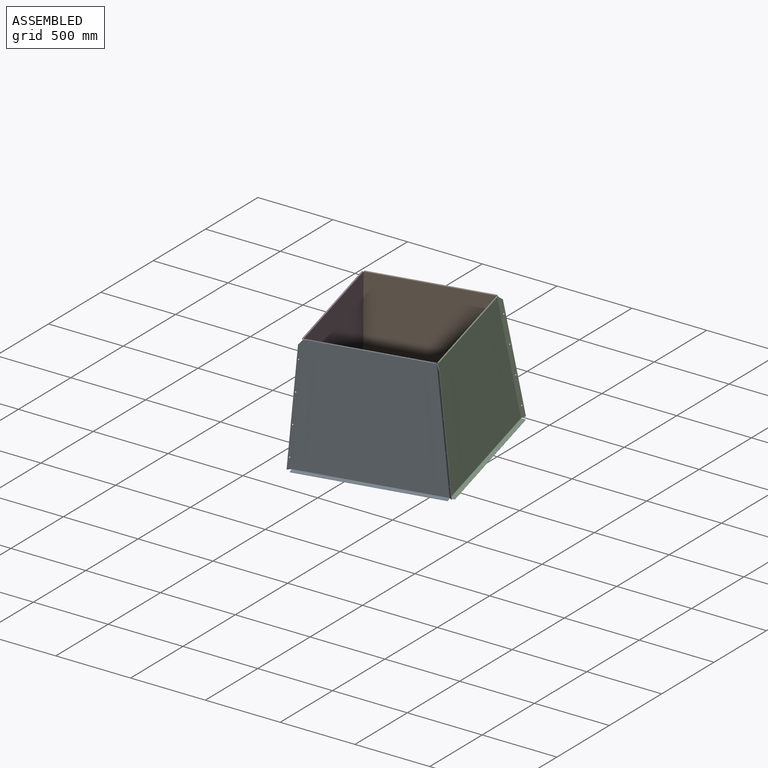
[diagram: assembled view]
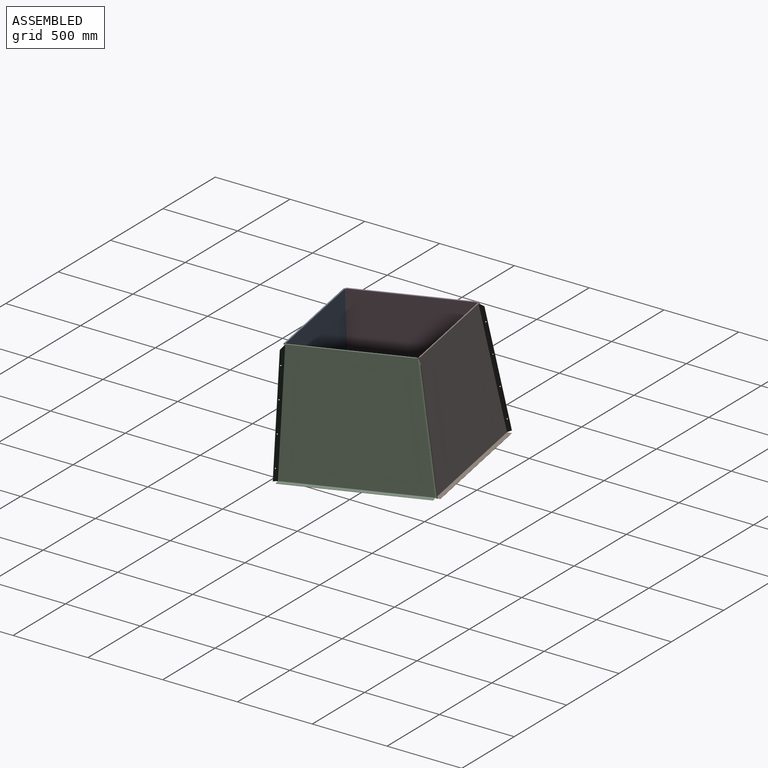
[diagram: assembled view, second angle]
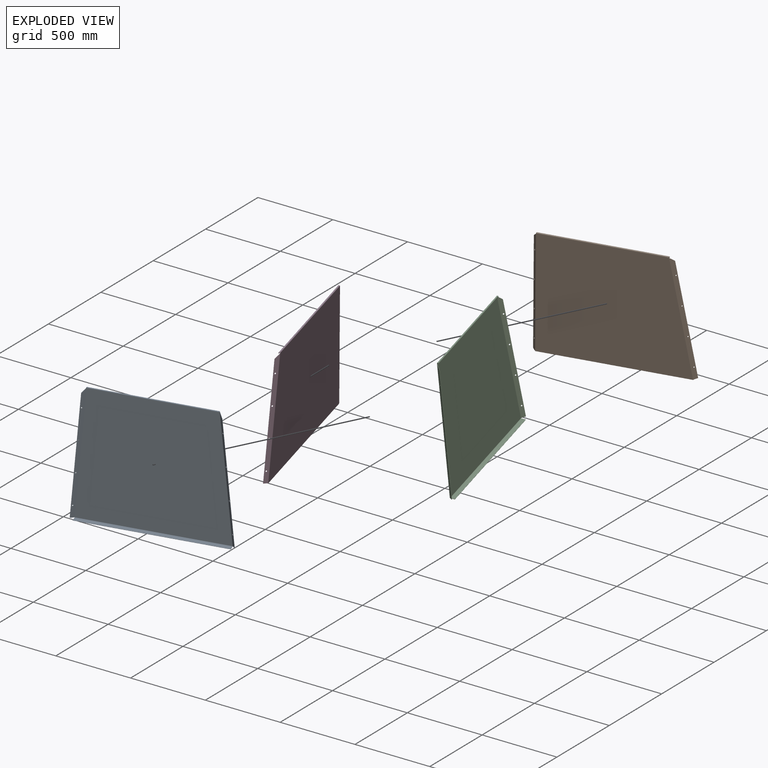
[diagram: exploded view]
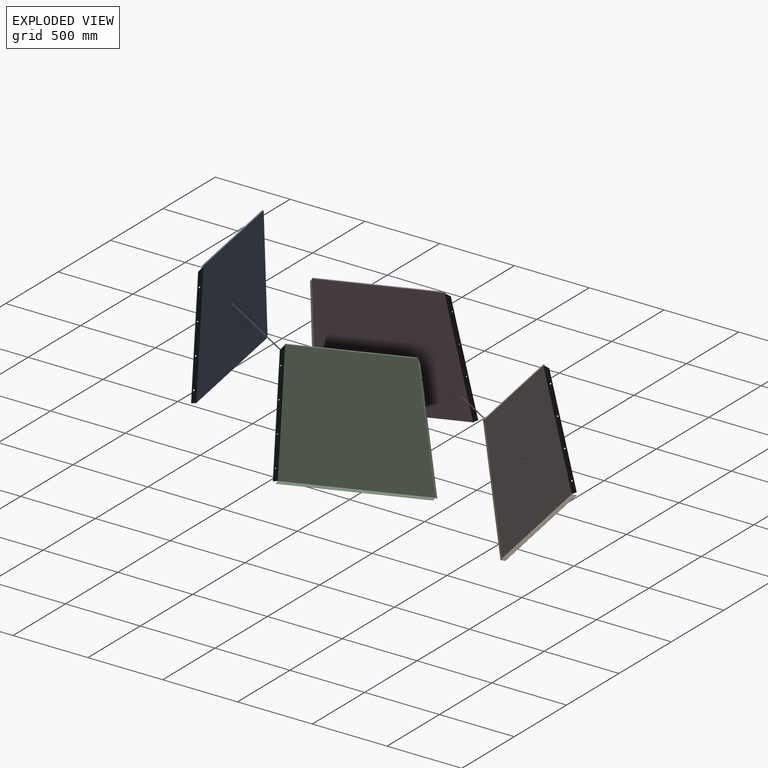
[diagram: exploded view, second angle]
ASSEMBLY  parts=4 mates=3
PART A: 64 faces, bbox 991.6x29.8x805.2 mm
  f0: plane 3.55x1.5mm, normal (1,0,0.09), area 5.4mm2, adj f3,f4,f5,f44
  f1: plane 3.55x1.5mm, normal (-1,0,0.09), area 5.4mm2, adj f2,f4,f5,f30
  f2: plane 1.5x0.09mm, normal (0,0,1), area 0.1mm2, adj f1,f4,f5,f61
  f3: plane 1.5x0.09mm, normal (0,0,1), area 0.1mm2, adj f0,f4,f5,f60
  f4: plane 947.51x795.4mm, normal (0,1,0), area 694342mm2, adj f0,f1,f2,f3,f17,f31,f45,f62
  f5: plane 947.51x795.4mm, normal (0,-1,0), area 694342mm2, adj f0,f1,f2,f3,f18,f32,f46,f63
  f6: plane 1.48x0.5mm, normal (0,0.98,0.17), area 0.7mm2, adj f12,f13,f14,f16
  f7: plane 1.48x0.5mm, normal (0,0.98,0.17), area 0.7mm2, adj f8,f13,f14,f15
  f8: plane 1.48x0.63mm, normal (0,0.98,0.17), area 0.9mm2, adj f7,f9,f13,f14
  f9: plane 27.74x6.32mm, normal (1,0,0), area 41.9mm2, adj f8,f10,f13,f14
  f10: plane 949.76x1.48mm, normal (0,-0.98,-0.17), area 1424.6mm2, adj f9,f11,f13,f14
  f11: plane 27.74x6.32mm, normal (-1,0,0), area 41.9mm2, adj f10,f12,f13,f14
  f12: plane 1.48x0.63mm, normal (0,0.98,0.17), area 0.9mm2, adj f6,f11,f13,f14
  f13: plane 949.76x27.48mm, normal (0,0.17,-0.98), area 26500.6mm2, adj f6,f7,f8,f9,f10,f11,f12,f17
  f14: plane 949.76x27.48mm, normal (0,-0.17,0.98), area 26500.6mm2, adj f6,f7,f8,f9,f10,f11,f12,f18
  f15: plane 2.46x2.33mm, normal (1,0,0), area 3.7mm2, adj f7,f17,f18,f43
  f16: plane 2.46x2.33mm, normal (-1,0,0), area 3.7mm2, adj f6,f17,f18,f29
  f17: cylinder r=2.5mm len=947.51mm, axis (1,0,0), area 3307.4mm2, adj f4,f13,f15,f16
  f18: cylinder r=1mm len=947.51mm, axis (1,0,0), area 1323mm2, adj f5,f14,f15,f16
  f19: plane 21.62x21.36mm, normal (-0.09,0,-1), area 43.4mm2, adj f20,f25,f26,f27
  f20: plane 763.15x72.6mm, normal (-0.7,-0.71,0.07), area 1149.6mm2, adj f19,f26,f27,f28
  f21: cylinder r=3.5mm len=7.08mm, axis (-0.71,0.7,0.07), area 33mm2, adj f26,f27
  f22: cylinder r=3.5mm len=7.08mm, axis (-0.71,0.7,0.07), area 33mm2, adj f26,f27
  f23: cylinder r=3.5mm len=7.08mm, axis (-0.71,0.7,0.07), area 33mm2, adj f26,f27
  f24: cylinder r=3.5mm len=7.08mm, axis (-0.71,0.7,0.07), area 33mm2, adj f26,f27
  f25: plane 1.06x1.06mm, normal (0.7,0.71,-0.07), area 0.1mm2, adj f19,f26,f27,f29
  f26: plane 791.89x94.54mm, normal (-0.71,0.7,0.07), area 22458.7mm2, adj f19,f20,f21,f22,f23,f24,f25,f28
  f27: plane 791.89x94.54mm, normal (0.71,-0.7,-0.07), area 22458.7mm2, adj f19,f20,f21,f22,f23,f24,f25,f28
  f28: plane 27.03x24.06mm, normal (-0.43,-0.5,0.75), area 61.4mm2, adj f20,f26,f27,f30
  f29: plane 1.8x1.77mm, normal (-0.09,0,-1), area 2.1mm2, adj f16,f25,f31,f32
  f30: plane 1.8x1.77mm, normal (0.09,0,1), area 2.1mm2, adj f1,f28,f31,f32
  f31: cylinder r=2.5mm len=792.01mm, axis (-0.09,0,-1), area 1570.5mm2, adj f4,f26,f29,f30
  f32: cylinder r=1mm len=791.91mm, axis (-0.09,0,-1), area 628.2mm2, adj f5,f27,f29,f30
  f33: plane 1.06x1.06mm, normal (-0.7,0.71,-0.07), area 0.1mm2, adj f35,f40,f41,f43
  f34: plane 763.15x72.6mm, normal (0.7,-0.71,0.07), area 1149.6mm2, adj f35,f40,f41,f42
  f35: plane 21.62x21.36mm, normal (0.09,0,-1), area 43.4mm2, adj f33,f34,f40,f41
  f36: cylinder r=4.6mm len=9.28mm, axis (0.71,0.7,0.07), area 43.4mm2, adj f40,f41
  f37: cylinder r=4.6mm len=9.28mm, axis (0.71,0.7,0.07), area 43.4mm2, adj f40,f41
  f38: cylinder r=4.6mm len=9.28mm, axis (0.71,0.7,0.07), area 43.4mm2, adj f40,f41
  f39: cylinder r=4.6mm len=9.28mm, axis (0.71,0.7,0.07), area 43.4mm2, adj f40,f41
  f40: plane 791.89x94.54mm, normal (0.71,0.7,0.07), area 22346.8mm2, adj f33,f34,f35,f36,f37,f38,f39,f42
  f41: plane 791.89x94.54mm, normal (-0.71,-0.7,-0.07), area 22346.8mm2, adj f33,f34,f35,f36,f37,f38,f39,f42
  f42: plane 27.03x24.06mm, normal (0.43,-0.5,0.75), area 61.4mm2, adj f34,f40,f41,f44
  f43: plane 1.8x1.77mm, normal (0.09,0,-1), area 2.1mm2, adj f15,f33,f45,f46
  f44: plane 1.8x1.77mm, normal (-0.09,0,1), area 2.1mm2, adj f0,f42,f45,f46
  f45: cylinder r=2.5mm len=792.01mm, axis (0.09,0,-1), area 1570.5mm2, adj f4,f40,f43,f44
  f46: cylinder r=1mm len=791.91mm, axis (0.09,0,-1), area 628.2mm2, adj f5,f41,f43,f44
  f47: plane 5x1.5mm, normal (1,0,0), area 7.5mm2, adj f49,f50,f56,f60
  f48: plane 5x1.5mm, normal (-1,0,0), area 7.5mm2, adj f49,f50,f57,f61
  f49: plane 798.19x5mm, normal (0,0,1), area 3990.9mm2, adj f47,f48,f58,f62
  f50: plane 798.19x5mm, normal (0,0,-1), area 3990.9mm2, adj f47,f48,f59,f63
  f51: plane 798.19x1.5mm, normal (0,0,-1), area 1197.3mm2, adj f52,f53,f54,f55
  f52: plane 7.5x1.5mm, normal (1,0,0), area 11.2mm2, adj f51,f54,f55,f56
  f53: plane 7.5x1.5mm, normal (-1,0,0), area 11.2mm2, adj f51,f54,f55,f57
  f54: plane 798.19x7.5mm, normal (0,-1,0), area 5986.4mm2, adj f51,f52,f53,f58
  f55: plane 798.19x7.5mm, normal (0,1,0), area 5986.4mm2, adj f51,f52,f53,f59
  f56: plane 2.5x2.5mm, normal (1,0,0), area 4.1mm2, adj f47,f52,f58,f59
  f57: plane 2.5x2.5mm, normal (-1,0,0), area 4.1mm2, adj f48,f53,f58,f59
  f58: cylinder r=2.5mm len=798.19mm, axis (1,0,0), area 3134.5mm2, adj f49,f54,f56,f57
  f59: cylinder r=1mm len=798.19mm, axis (1,0,0), area 1253.8mm2, adj f50,f55,f56,f57
  f60: plane 2.5x2.5mm, normal (1,0,0), area 4.1mm2, adj f3,f47,f62,f63
  f61: plane 2.5x2.5mm, normal (-1,0,0), area 4.1mm2, adj f2,f48,f62,f63
  f62: cylinder r=2.5mm len=798.19mm, axis (1,0,0), area 3134.5mm2, adj f4,f49,f60,f61
  f63: cylinder r=1mm len=798.19mm, axis (1,0,0), area 1253.8mm2, adj f5,f50,f60,f61
PART B: same geometry as A
PART C: same geometry as A
PART D: same geometry as A
PLACE A rot(axis=(-0.05,-0.05,1),10.7deg) t=(-222.49,-391.02,16.12)mm fixed
PLACE B rot(axis=(0,0.09,-1),169.3deg) t=(-383.87,459.56,89.36)mm
PLACE C rot(axis=(0,-0.09,1),100.7deg) t=(123.67,114.91,56.18)mm
PLACE D rot(axis=(-0.01,0.09,-1),79.3deg) t=(-729.98,-46.41,49.31)mm
MATE planar D.f21 <-> B.f36  axis (0.56,0.82,0.07) through (-798.35,351.31,326.77)mm
MATE planar A.f21 <-> D.f36  axis (-0.83,0.56,0.05) through (-640.26,-481.73,255.03)mm
MATE planar A.f36 <-> C.f21  axis (0.56,0.82,0.07) through (194.59,-322.86,261.63)mm
